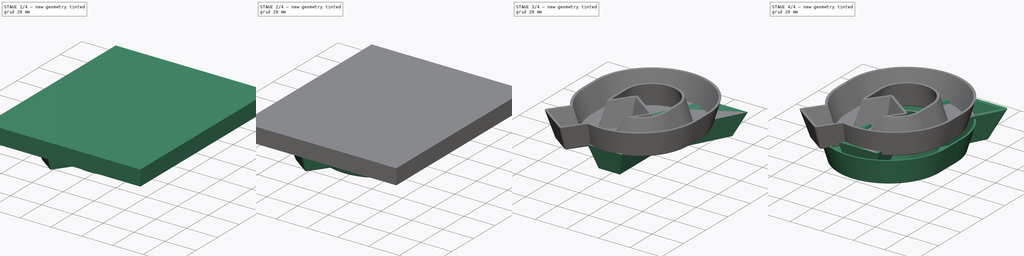
[diagram: build sequence overview — one tinted view per stage of 4, left to right]
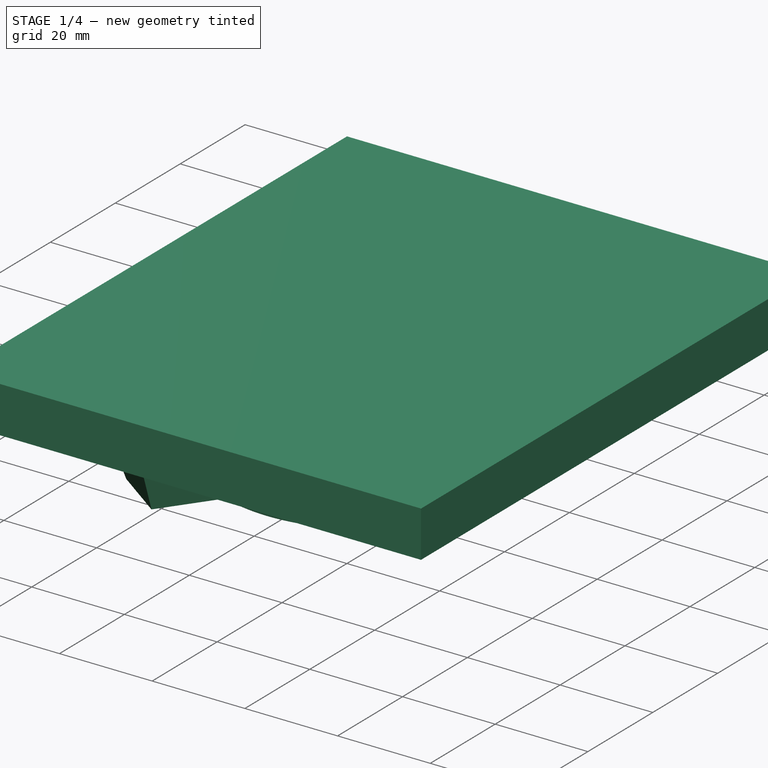
[diagram: stage 1 of 4 — iso view after this stage's code; geometry added in this stage tinted green]
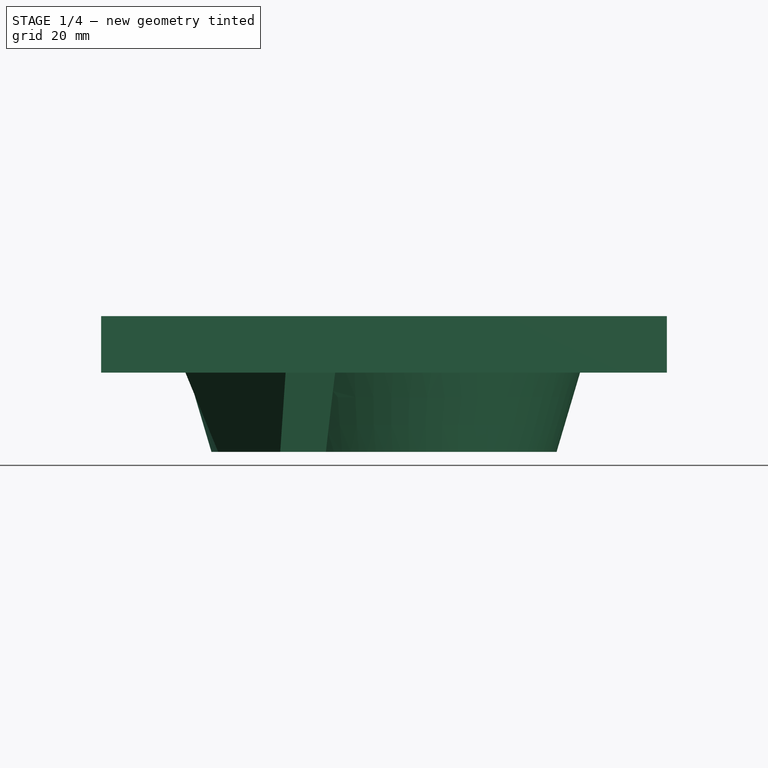
[diagram: stage 1 of 4 — front view after this stage's code; geometry added in this stage tinted green]
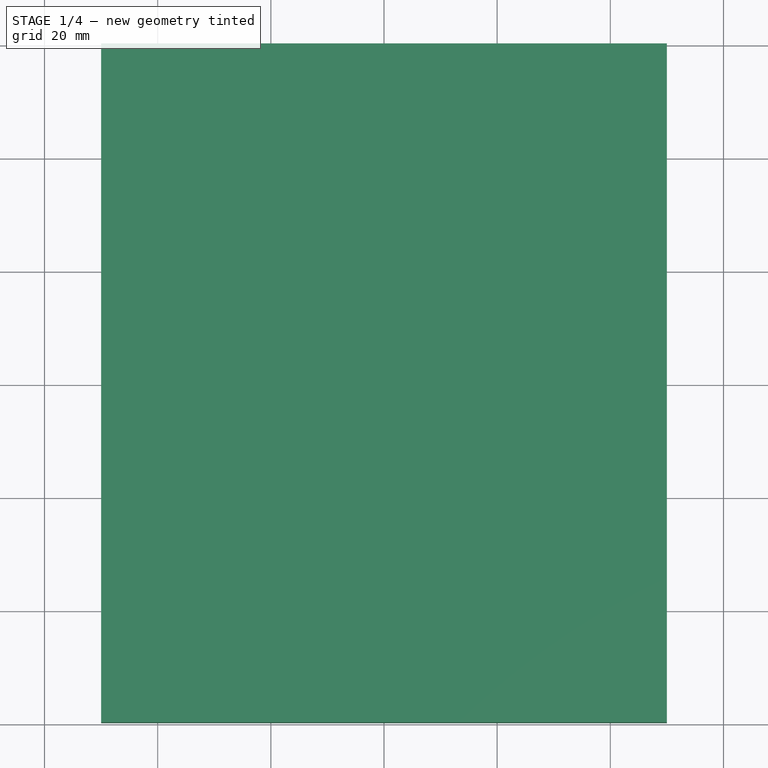
[diagram: stage 1 of 4 — top view after this stage's code; geometry added in this stage tinted green]
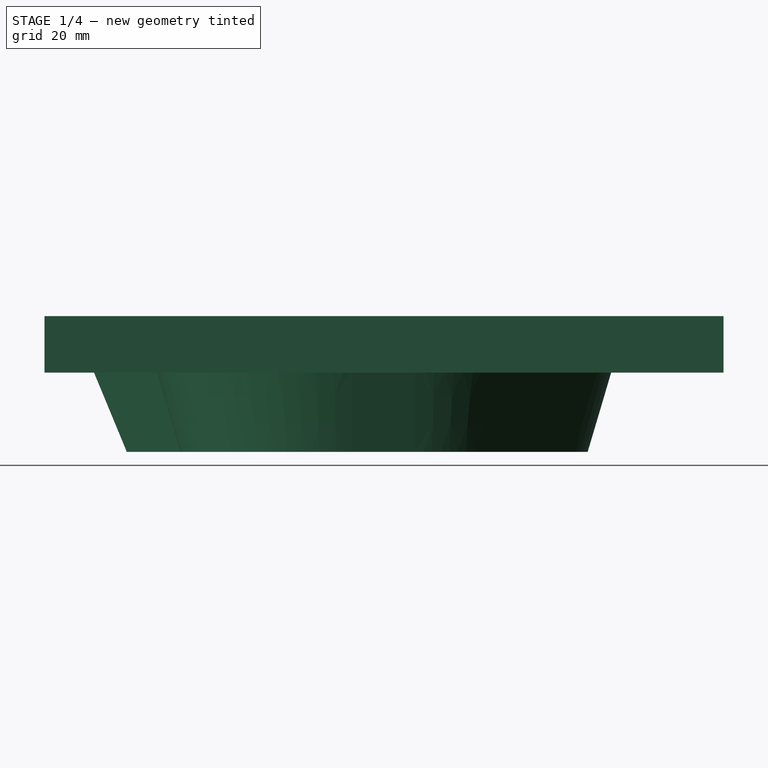
[diagram: stage 1 of 4 — right view after this stage's code; geometry added in this stage tinted green]
FCSTD DOCUMENT  (FreeCAD 0.19R20310 (Git))
Label: OYQ
License: All rights reserved
LicenseURL: http://en.wikipedia.org/wiki/All_rights_reserved
objects: Sketcher::SketchObject×4, PartDesign::Draft×4, PartDesign::Body×3, Part::Cut×3, PartDesign::Pad×2, Part::Offset×2, PartDesign::AdditivePipe×1, Part::Fillet×1, Part::Box×1
note: 28 computed .brp shape members not serialized (recipe doc carries the construction recipe); baked Part::Feature solids carry a one-line shape summary decoded from their .brp

FEATURE [Sketcher::SketchObject] Sketch003
  MapMode = 5
  sketch-geometry (18):
    g0: LineSegment StartX=-17 StartY=5.5 StartZ=0 EndX=-17 EndY=-5.5 EndZ=0
    g1: LineSegment StartX=17 StartY=5.5 StartZ=0 EndX=17 EndY=-5.5 EndZ=0
    g2: ArcOfCircle CenterX=0 CenterY=5.5 CenterZ=0 NormalX=0 NormalY=0 NormalZ=1 AngleXU=0 Radius=17 StartAngle=0 EndAngle=3.14159
    g3: ArcOfCircle CenterX=0 CenterY=5.5 CenterZ=0 NormalX=0 NormalY=0 NormalZ=1 AngleXU=0 Radius=30.5 StartAngle=0 EndAngle=3.14159
    g4: LineSegment StartX=-30.5 StartY=5.5 StartZ=0 EndX=-30.5 EndY=-5.5 EndZ=0
    g5: LineSegment StartX=30.5 StartY=-5.5 StartZ=0 EndX=30.5 EndY=5.5 EndZ=0
    g6: LineSegment StartX=-13.591 StartY=-15.712 StartZ=0 EndX=-5.91678 EndY=-5.03441 EndZ=0
    g7: LineSegment StartX=-5.91678 StartY=-5.03441 StartZ=0 EndX=5.04556 EndY=-12.9133 EndZ=0
    g8: LineSegment StartX=5.04556 StartY=-12.9133 StartZ=0 EndX=-1.77764 EndY=-22.4068 EndZ=0
    g9: LineSegment StartX=-21.6743 StartY=-26.9587 StartZ=0 EndX=-29.3036 EndY=-37.5738 EndZ=0
    g10: LineSegment StartX=-29.3036 StartY=-37.5738 StartZ=0 EndX=-18.3413 EndY=-45.4527 EndZ=0
    g11: LineSegment StartX=-18.3413 StartY=-45.4527 StartZ=0 EndX=-10.2679 EndY=-34.2197 EndZ=0
    g12: ArcOfCircle CenterX=0 CenterY=-5.5 CenterZ=0 NormalX=0 NormalY=0 NormalZ=1 AngleXU=0 Radius=17 StartAngle=3.14159 EndAngle=3.78597
    g13: ArcOfCircle CenterX=0 CenterY=-5.5 CenterZ=0 NormalX=0 NormalY=0 NormalZ=1 AngleXU=0 Radius=17 StartAngle=4.60763 EndAngle=6.28319
    g14: ArcOfCircle CenterX=0 CenterY=-5.5 CenterZ=0 NormalX=0 NormalY=0 NormalZ=1 AngleXU=0 Radius=30.5 StartAngle=3.14159 EndAngle=3.92199
    g15: ArcOfCircle CenterX=0 CenterY=-5.5 CenterZ=0 NormalX=0 NormalY=0 NormalZ=1 AngleXU=0 Radius=30.5 StartAngle=4.36903 EndAngle=6.28319
    g16: LineSegment [constr] StartX=5.04556 StartY=-12.9133 StartZ=0 EndX=-18.3413 EndY=-45.4527 EndZ=0
    g17: LineSegment [constr] StartX=-5.91678 StartY=-5.03441 StartZ=0 EndX=-29.3036 EndY=-37.5738 EndZ=0
  constraints (42):
    c: Vertical(g0)
    c: Vertical(g1)
    c: PointOnObject(g2,g-2)
    c: Tangent(g1,g2) = 1.5708
    c: Tangent(g2,g0) = -1.5708
    c: DistanceX(g0,g1) = 34
    c: Coincident(g3,g2)
    c: Coincident(g4,g3)
    c: Vertical(g4)
    c: Horizontal(g3,g0)
    c: Tangent(g3,g5) = -1.5708
    c: DistanceX(g1,g3) = 13.5
    c: Symmetric(g3,g5,g-1)
    c: Coincident(g6,g7)
    c: Coincident(g7,g8)
    c: Coincident(g9,g10)
    c: Coincident(g10,g11)
    c: PointOnObject(g12,g-2)
    c: Coincident(g13,g8)
    c: Coincident(g14,g12)
    c: Tangent(g4,g14) = -1.5708
    c: Tangent(g0,g12) = -1.5708
    c: Tangent(g1,g13) = 1.5708
    c: Tangent(g15,g5) = -1.5708
    c: Coincident(g13,g15)
    c: Coincident(g12,g13)
    c: Coincident(g6,g12)
    c: Coincident(g9,g14)
    c: Coincident(g11,g15)
    c: Perpendicular(g8,g7)
    c: Perpendicular(g10,g11)
    c: Parallel(g9,g11)
    c: Parallel(g6,g8)
    c: Coincident(g16,g7)
    c: Coincident(g16,g10)
    c: Coincident(g17,g6)
    c: Coincident(g17,g9)
    c: Parallel(g17,g16)
    c: PointOnObject(g8,g16)
    c: PointOnObject(g11,g16)
    c: Distance(g10,g9) = 13.5
    c: DistanceY(g5,g3) = 11
FEATURE [PartDesign::Pad] Pad
  Length = 14.5
  Length2 = 100
  Profile = -> Sketch003
  Type = 0
FEATURE [PartDesign::Draft] Draft
  Angle = 16.5
  Base = -> Pad [Face1,Face2,Face3,Face4,Face5,Face6,Face7,Face8]
  BaseFeature = -> Pad
  SupportTransform = true
FEATURE [PartDesign::Draft] Draft002
  Angle = 16.5
  Base = -> Draft [Face16]
  BaseFeature = -> Draft
  NeutralPlane = -> Draft [Face18]
  Reversed = true
  SupportTransform = true
FEATURE [Part::Box] Box  label="Cube"
  AttacherType = Attacher::AttachEngine3D
  Height = 10
  Length = 100
  Placement = pos=(-50,-60,14) rot=(0,0,1;0rad)
  Width = 120
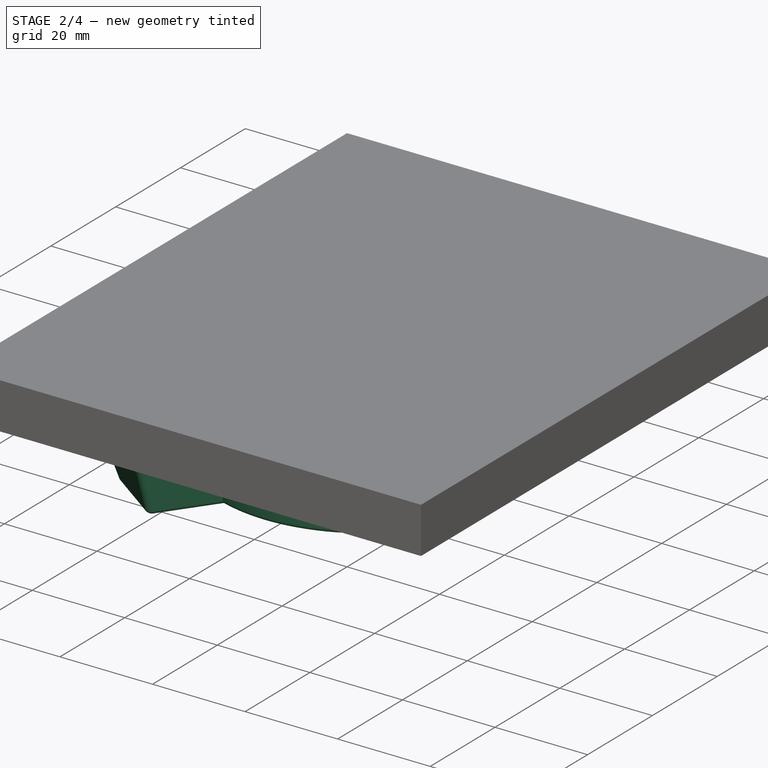
[diagram: stage 2 of 4 — iso view after this stage's code; geometry added in this stage tinted green]
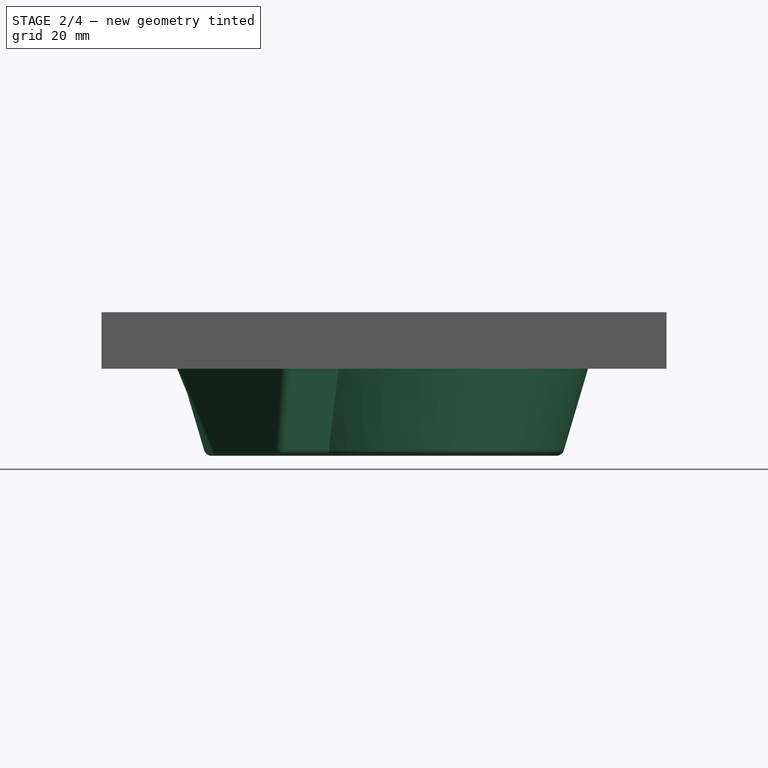
[diagram: stage 2 of 4 — front view after this stage's code; geometry added in this stage tinted green]
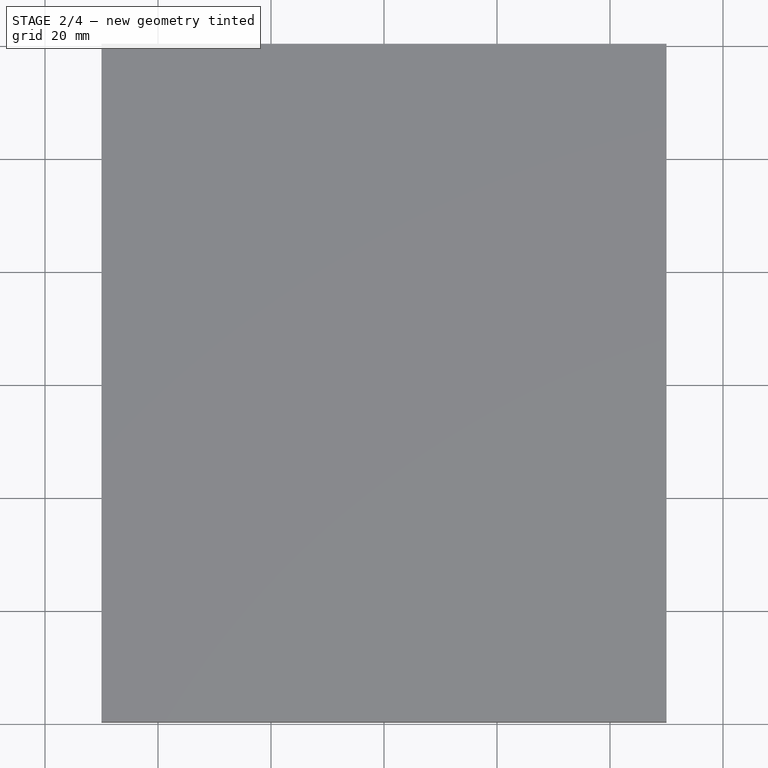
[diagram: stage 2 of 4 — top view after this stage's code; geometry added in this stage tinted green]
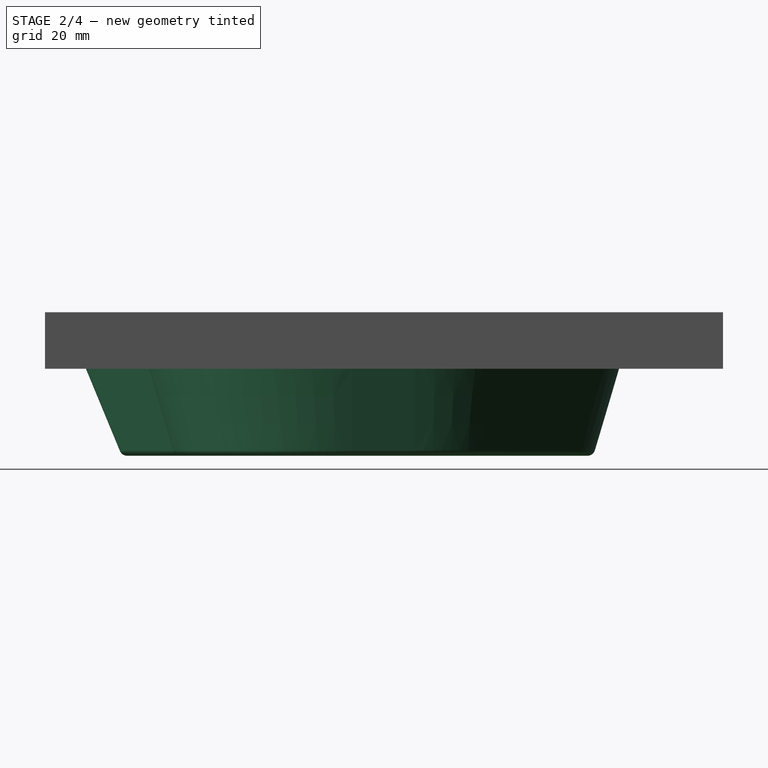
[diagram: stage 2 of 4 — right view after this stage's code; geometry added in this stage tinted green]
FEATURE [PartDesign::Draft] Draft003
  Angle = 16.5
  Base = -> Draft002 [Face11,Face12,Face13]
  BaseFeature = -> Draft002
  NeutralPlane = -> Draft002 [Face17]
  Reversed = true
  SupportTransform = true
FEATURE [PartDesign::Body] Body002
  Group = -> [Sketch003,Pad,Draft,Draft002,Draft003]
  Origin = -> Origin002
  Tip = -> Draft003
FEATURE [Part::Offset] Offset001
  Fill = false
  Intersection = true
  Join = 0
  Mode = 0
  SelfIntersection = false
  Source = -> Draft003
  Value = 1.4
FEATURE [Part::Cut] Cut001  label="Cut_Q"
  Base = -> Offset001
  Tool = -> Body002
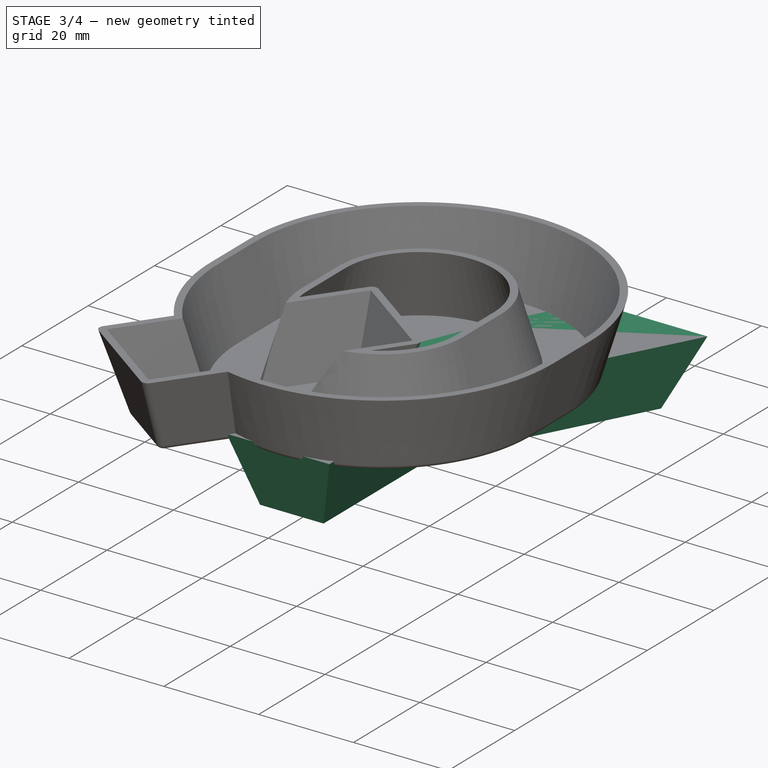
[diagram: stage 3 of 4 — iso view after this stage's code; geometry added in this stage tinted green]
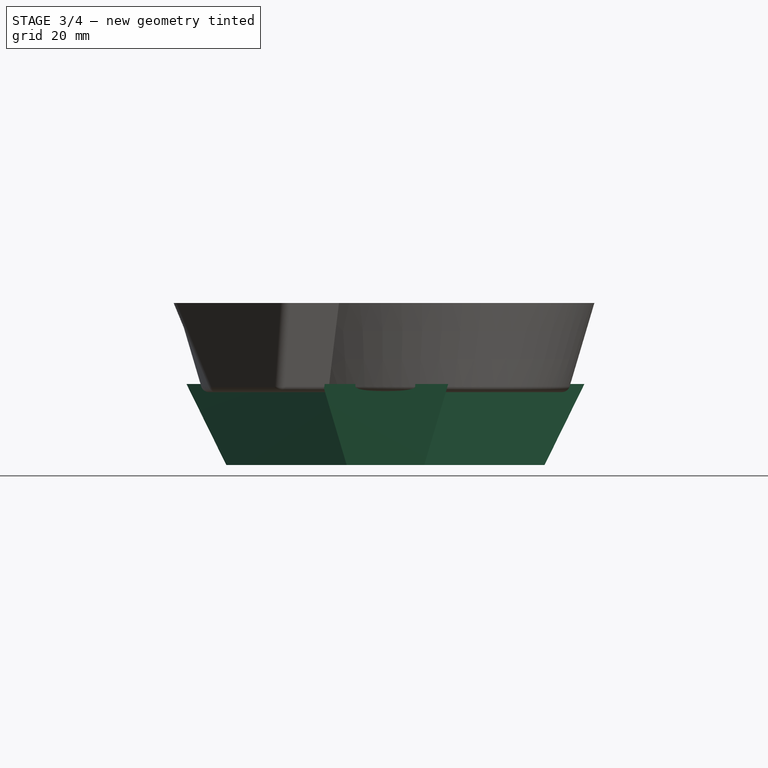
[diagram: stage 3 of 4 — front view after this stage's code; geometry added in this stage tinted green]
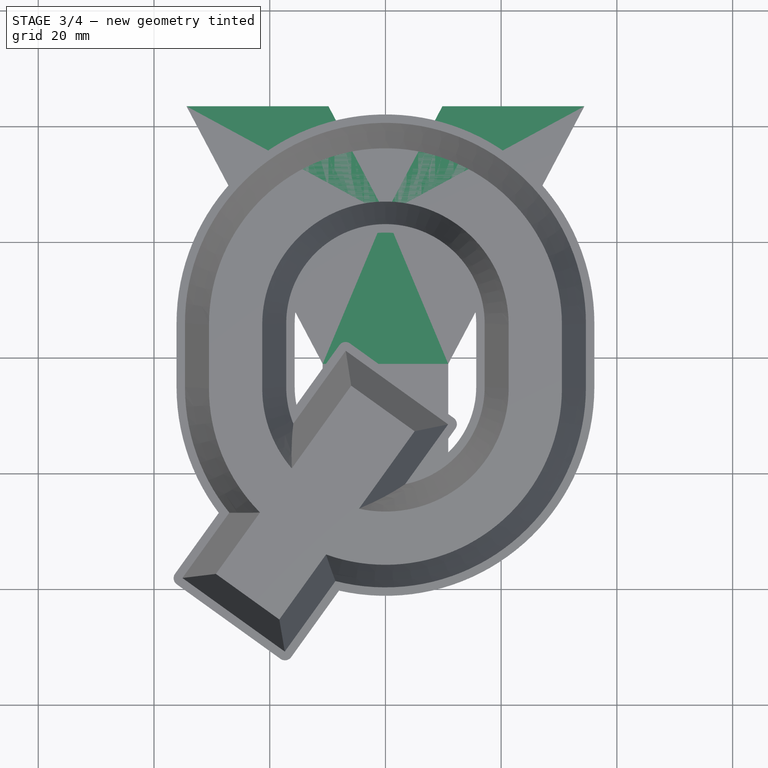
[diagram: stage 3 of 4 — top view after this stage's code; geometry added in this stage tinted green]
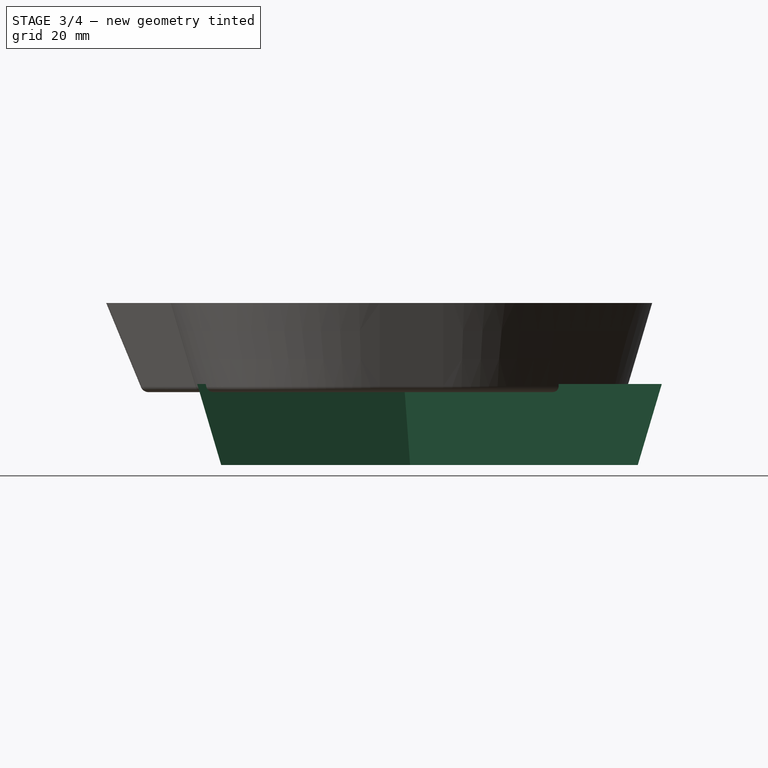
[diagram: stage 3 of 4 — right view after this stage's code; geometry added in this stage tinted green]
FEATURE [PartDesign::Body] Body  label="Body_O"
  Group = -> [Sketch,Sketch001,AdditivePipe]
  Origin = -> Origin
  Tip = -> AdditivePipe
FEATURE [Sketcher::SketchObject] Sketch002
  MapMode = 5
  Support = -> [XY_Plane001]
  sketch-geometry (10):
    g0: LineSegment StartX=-27.5 StartY=39.1139 StartZ=0 EndX=-12.3433 EndY=39.1139 EndZ=0
    g1: LineSegment StartX=-12.3433 StartY=39.1139 StartZ=0 EndX=0 EndY=15.7616 EndZ=0
    g2: LineSegment StartX=0 StartY=15.7616 StartZ=0 EndX=12.3433 EndY=39.1139 EndZ=0
    g3: LineSegment StartX=12.3433 StartY=39.1139 StartZ=0 EndX=27.5 EndY=39.1139 EndZ=0
    g4: LineSegment StartX=27.5 StartY=39.1139 StartZ=0 EndX=6.7 EndY=-0.237716 EndZ=0
    g5: LineSegment StartX=6.7 StartY=-0.237716 StartZ=0 EndX=6.7 EndY=-32.8861 EndZ=0
    g6: LineSegment StartX=6.7 StartY=-32.8861 StartZ=0 EndX=-6.7 EndY=-32.8861 EndZ=0
    g7: LineSegment StartX=-6.7 StartY=-32.8861 StartZ=0 EndX=-6.7 EndY=-0.237716 EndZ=0
    g8: LineSegment StartX=-6.7 StartY=-0.237716 StartZ=0 EndX=-27.5 EndY=39.1139 EndZ=0
    g9: LineSegment [constr] StartX=5.22654 StartY=25.6497 StartZ=0 EndX=17.0734 EndY=19.3878 EndZ=0
  constraints (25):
    c: Coincident(g0,g1)
    c: Coincident(g2,g3)
    c: Horizontal(g3)
    c: Coincident(g3,g4)
    c: Coincident(g4,g5)
    c: Vertical(g5)
    c: Coincident(g5,g6)
    c: Horizontal(g6)
    c: Coincident(g6,g7)
    c: Coincident(g7,g8)
    c: Coincident(g0,g8)
    c: Vertical(g7)
    c: DistanceX(g6,g5) = 13.4
    c: Symmetric(g7,g4,g-2)
    c: Symmetric(g0,g2,g-2)
    c: DistanceY(g5,g3) = 72
    c: Parallel(g2,g4)
    c: PointOnObject(g9,g2)
    c: PointOnObject(g9,g4)
    c: Perpendicular(g9,g2)
    c: Distance(g9) = 13.4
    c: Symmetric(g0,g3,g-2)
    c: DistanceX(g0,g3) = 55
    c: Coincident(g1,g2)
    c: PointOnObject(g1,g-2)
FEATURE [PartDesign::Pad] Pad001
  Length = 14
  Length2 = 100
  Profile = -> Sketch002
  Reversed = true
  Type = 0
FEATURE [PartDesign::Draft] Draft001
  Angle = 16.5
  Base = -> Pad001 [Face6,Face5,Face4,Face2,Face1,Face3,Face8,Face9,Face7]
  BaseFeature = -> Pad001
  NeutralPlane = -> Pad001 [Face11]
  SupportTransform = true
FEATURE [Part::Cut] Cut002
  Base = -> Cut001
  Tool = -> Box
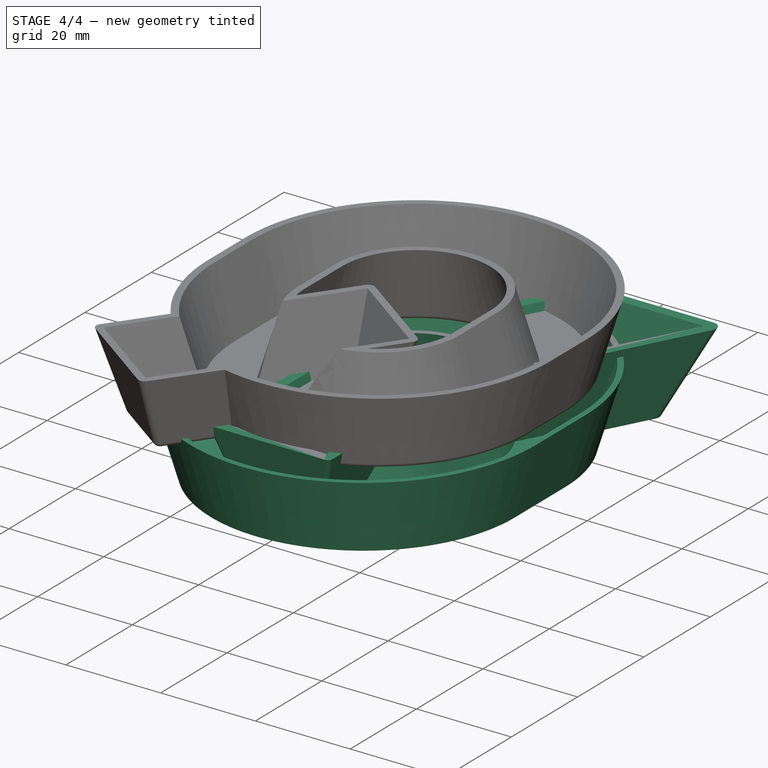
[diagram: stage 4 of 4 — iso view after this stage's code; geometry added in this stage tinted green]
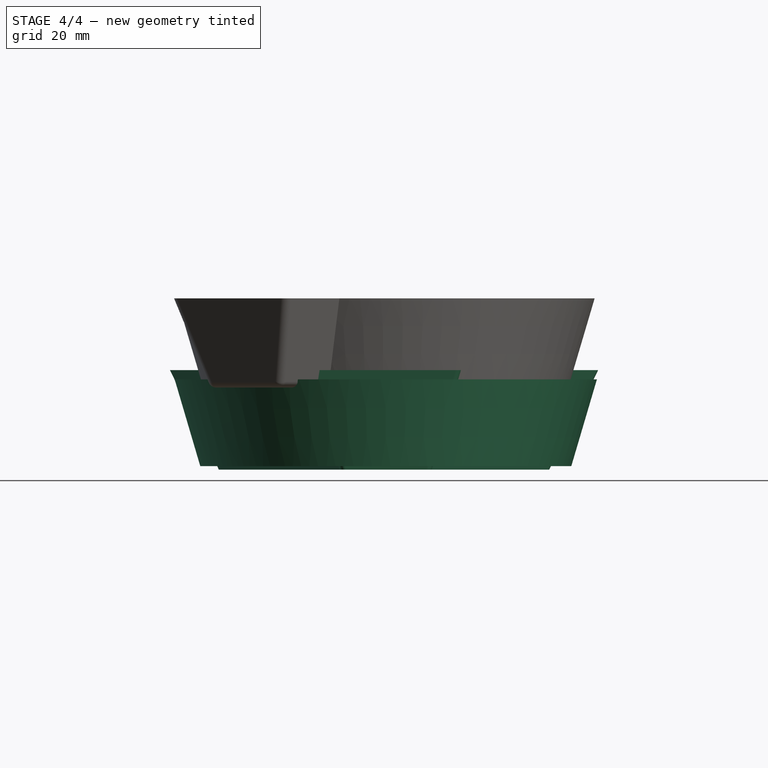
[diagram: stage 4 of 4 — front view after this stage's code; geometry added in this stage tinted green]
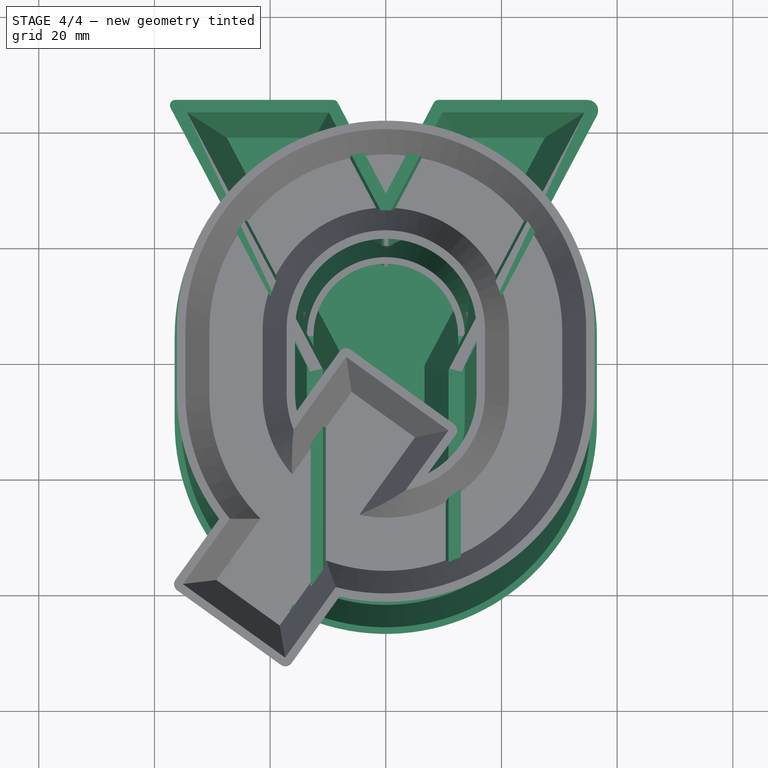
[diagram: stage 4 of 4 — top view after this stage's code; geometry added in this stage tinted green]
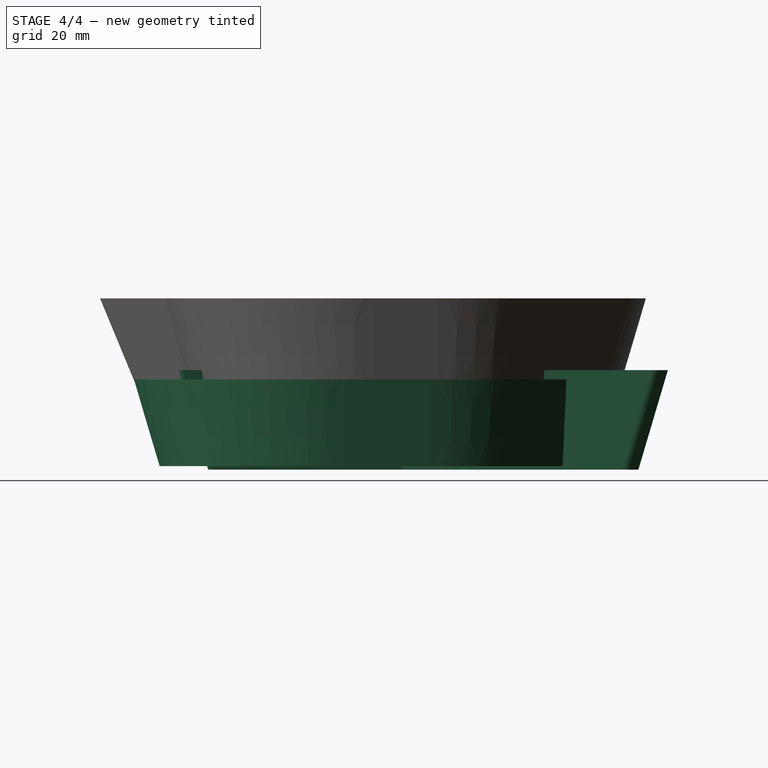
[diagram: stage 4 of 4 — right view after this stage's code; geometry added in this stage tinted green]
FEATURE [Sketcher::SketchObject] Sketch
  MapMode = 5
  Support = -> [XY_Plane]
  sketch-geometry (4):
    g0: LineSegment StartX=-12.5 StartY=4.59706 StartZ=0 EndX=-12.5 EndY=-10.4029 EndZ=0
    g1: LineSegment StartX=12.5 StartY=4.59706 StartZ=0 EndX=12.5 EndY=-10.4029 EndZ=0
    g2: ArcOfCircle CenterX=0 CenterY=4.59706 CenterZ=0 NormalX=0 NormalY=0 NormalZ=1 AngleXU=0 Radius=12.5 StartAngle=0 EndAngle=3.14159
    g3: ArcOfCircle CenterX=-2e-16 CenterY=-10.4029 CenterZ=0 NormalX=0 NormalY=0 NormalZ=1 AngleXU=0 Radius=12.5 StartAngle=3.14159 EndAngle=6.28319
  constraints (9):
    c: Vertical(g0)
    c: Vertical(g1)
    c: PointOnObject(g2,g-2)
    c: Tangent(g0,g3) = -1.5708
    c: Tangent(g3,g1) = 1.5708
    c: Tangent(g1,g2) = 1.5708
    c: Tangent(g2,g0) = -1.5708
    c: DistanceX(g0,g1) = 25
    c: DistanceY(g3,g2) = 15
FEATURE [Sketcher::SketchObject] Sketch001  label="Profil"
  ExternalGeometry = -> [Sketch]
  MapMode = 5
  Placement = pos=(0,0,0) rot=(1,0,0;1.5708rad)
  Support = -> [XZ_Plane]
  sketch-geometry (11):
    g0: LineSegment StartX=-32.0722 StartY=-15 StartZ=0 EndX=-36.5 EndY=-1.8e-15 EndZ=0
    g1: LineSegment StartX=-36.5 StartY=-1.8e-15 StartZ=0 EndX=-35.3531 EndY=-1.8e-15 EndZ=0
    g2: LineSegment StartX=-35.3531 StartY=-1.8e-15 StartZ=0 EndX=-31.25 EndY=-13.9 EndZ=0
    g3: LineSegment StartX=-31.25 StartY=-13.9 StartZ=0 EndX=-17.75 EndY=-13.9 EndZ=0
    g4: LineSegment StartX=-17.75 StartY=-13.9 StartZ=0 EndX=-13.6469 EndY=-1.8e-15 EndZ=0
    g5: LineSegment StartX=-13.6469 StartY=-1.8e-15 StartZ=0 EndX=-12.5 EndY=-1.8e-15 EndZ=0
    g6: LineSegment StartX=-12.5 StartY=-1.8e-15 StartZ=0 EndX=-16.9278 EndY=-15 EndZ=0
    g7: LineSegment StartX=-16.9278 StartY=-15 StartZ=0 EndX=-32.0722 EndY=-15 EndZ=0
    g8: LineSegment [constr] StartX=-35.0606 StartY=-4.87628 StartZ=0 EndX=-34.0056 EndY=-4.56486 EndZ=0
    g9: LineSegment [constr] StartX=-13.758 StartY=-4.26163 StartZ=0 EndX=-14.813 EndY=-3.95021 EndZ=0
    g10: LineSegment [constr] StartX=-24.5 StartY=-4.13903 StartZ=0 EndX=-24.5 EndY=20.4807 EndZ=0
  constraints (29):
    c: Coincident(g0,g1)
    c: Coincident(g1,g2)
    c: Coincident(g2,g3)
    c: Horizontal(g3)
    c: Coincident(g3,g4)
    c: Coincident(g4,g5)
    c: Coincident(g5,g6)
    c: Coincident(g7,g0)
    c: Parallel(g0,g2)
    c: Parallel(g4,g6)
    c: Horizontal(g1)
    c: Horizontal(g5)
    c: PointOnObject(g8,g0)
    c: PointOnObject(g8,g2)
    c: Perpendicular(g2,g8)
    c: Distance(g8) = 1.1
    c: PointOnObject(g9,g6)
    c: PointOnObject(g9,g4)
    c: Perpendicular(g9,g4)
    c: Distance(g9) = 1.1
    c: DistanceY(g6,g3) = 1.1
    c: DistanceX(g2,g3) = 13.5
    c: DistanceY(g0,g0) = 15
    c: DistanceX(g0,g5) = 24
    c: Symmetric(g4,g1,g10)
    c: Symmetric(g3,g2,g10)
    c: Coincident(g6,g7)
    c: Parallel(g3,g7)
    c: Coincident(g5,g-3)
FEATURE [PartDesign::AdditivePipe] AdditivePipe
  AuxilleryCurvelinear = true
  AuxillerySpineTangent = false
  Binormal = (0,0,0)
  Mode = 0
  Placement = pos=(0,0,0) rot=(1,0,0;1.5708rad)
  Profile = -> Sketch001
  Spine = -> Sketch
  SpineTangent = false
  Transformation = 0
  Transition = 0
FEATURE [PartDesign::Body] Body001  label="Body001_Y"
  Group = -> [Sketch002,Pad001,Draft001]
  Origin = -> Origin001
  Placement = pos=(0,0,1.6) rot=(0,0,1;0rad)
  Tip = -> Draft001
FEATURE [Part::Offset] Offset
  Fill = false
  Intersection = false
  Join = 2
  Mode = 0
  SelfIntersection = false
  Source = -> Draft001
  Value = 1.6
FEATURE [Part::Cut] Cut  label="Cut_Y"
  Base = -> Offset
  Tool = -> Body001
FEATURE [Part::Fillet] Fillet
  Base = -> Cut
  Edges = 11 edges: [Edge1 r=1,Edge3 r=1,Edge6 r=1,Edge32 r=1,Edge33 r=1,Edge34 r=2,Edge35 r=1,Edge36 r=1,Edge40 r=1,Edge46 r=1,Edge52 r=1]
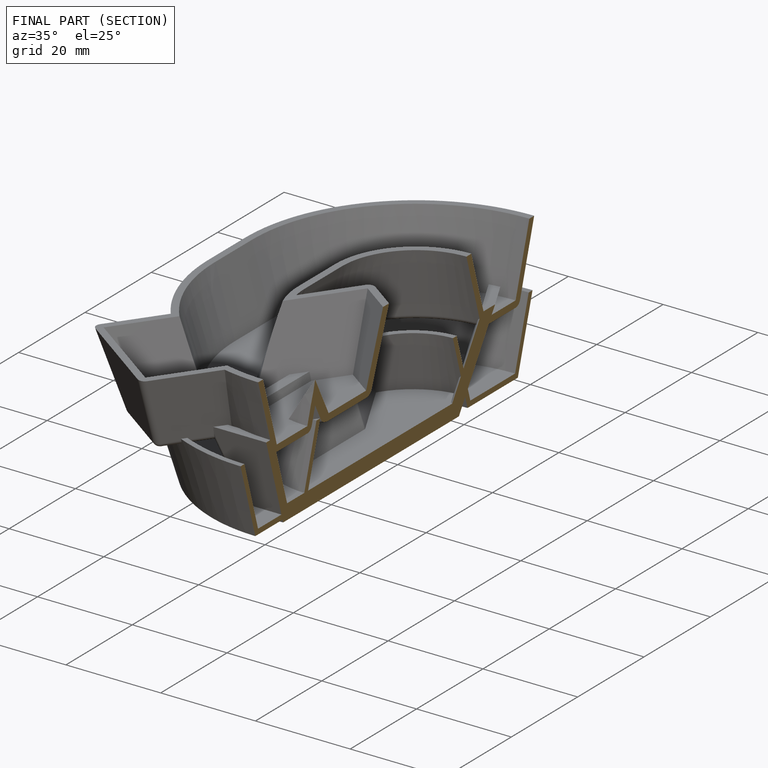
[diagram: finished part — half-section view (interior)]
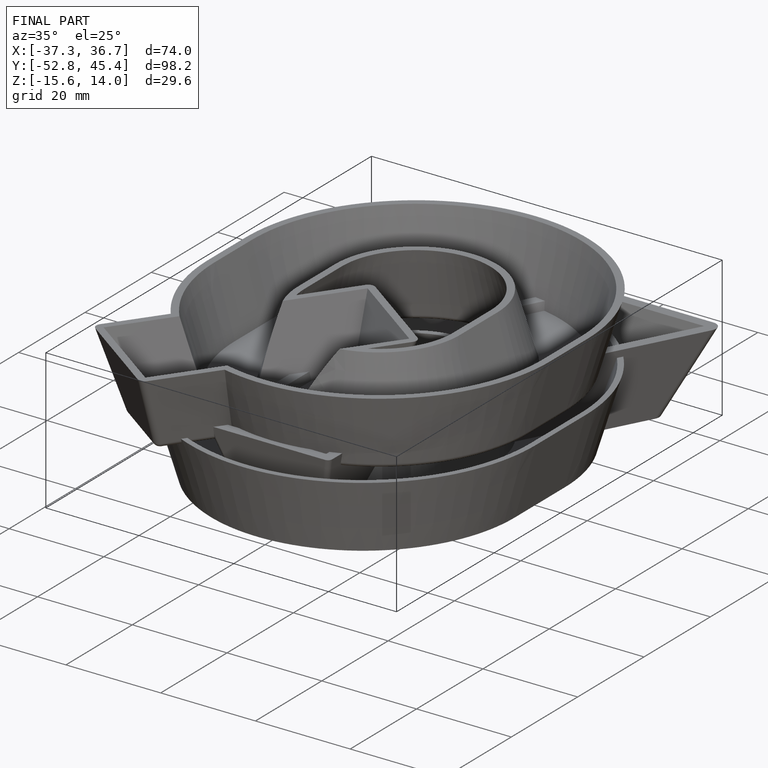
[diagram: finished part — iso view with bounding-box wireframe]
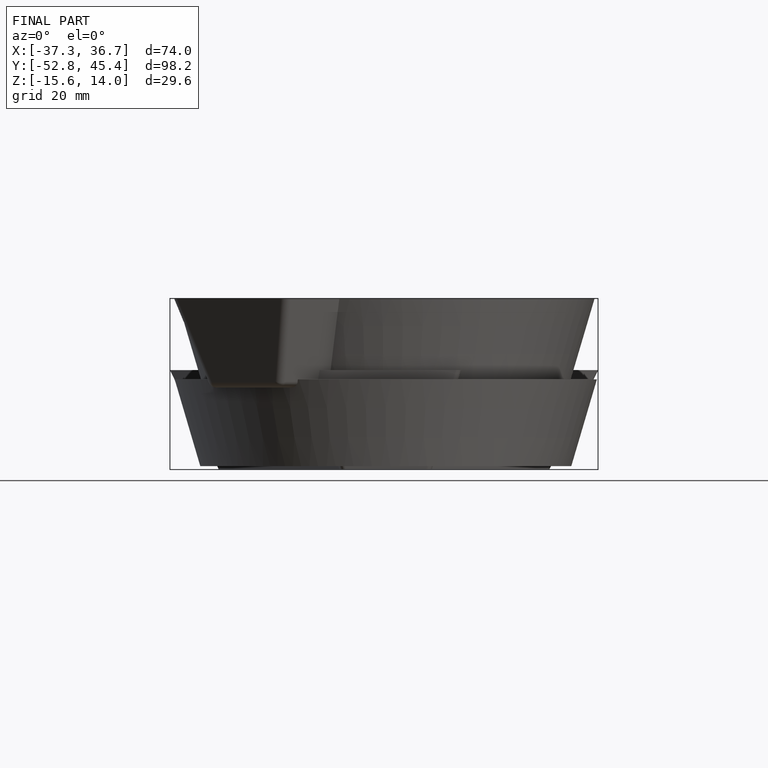
[diagram: finished part — front view with bounding-box wireframe]
